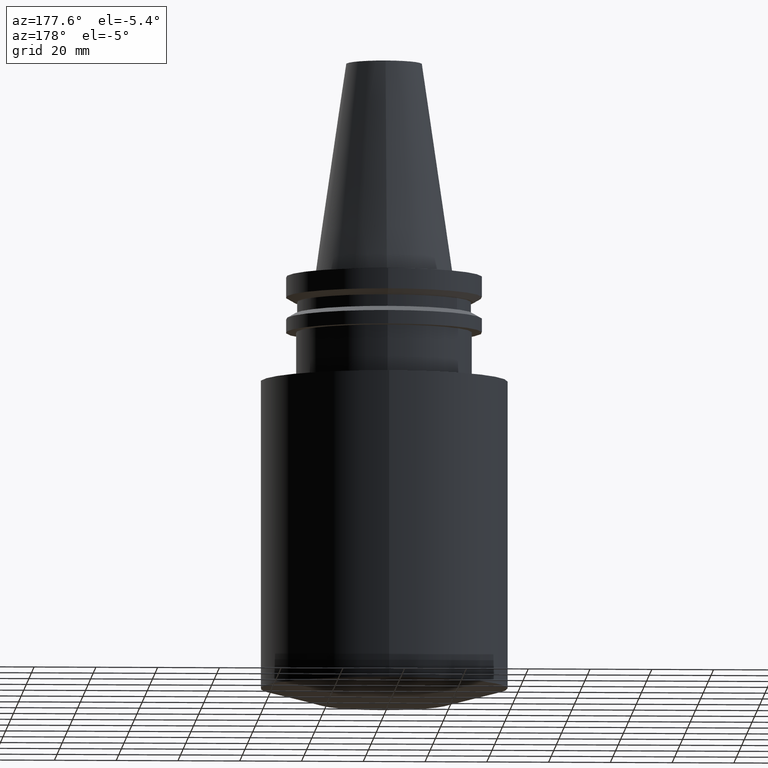
[diagram: clean part render]
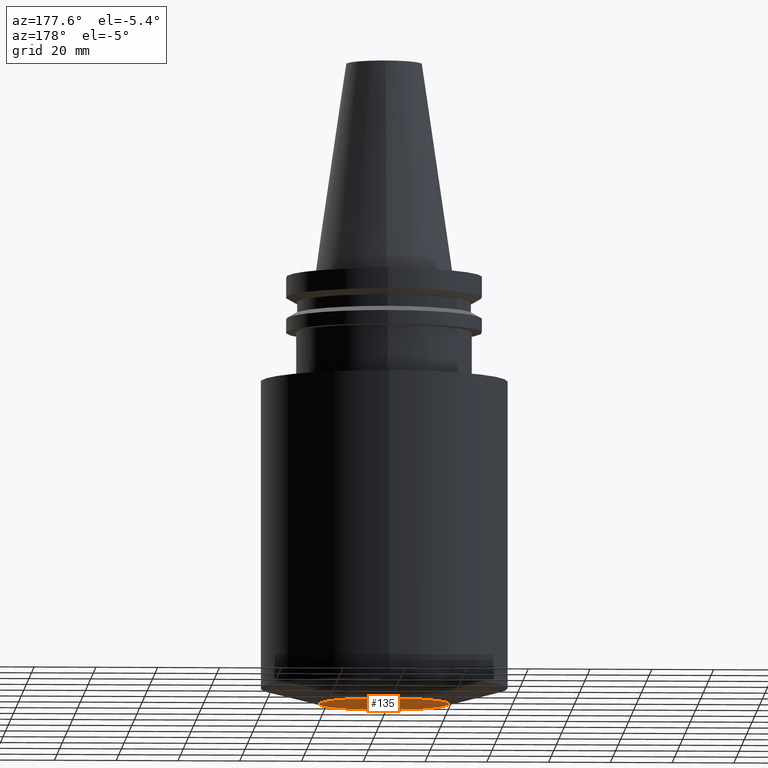
[diagram: same view with one face highlighted and labeled with its STEP entity id]
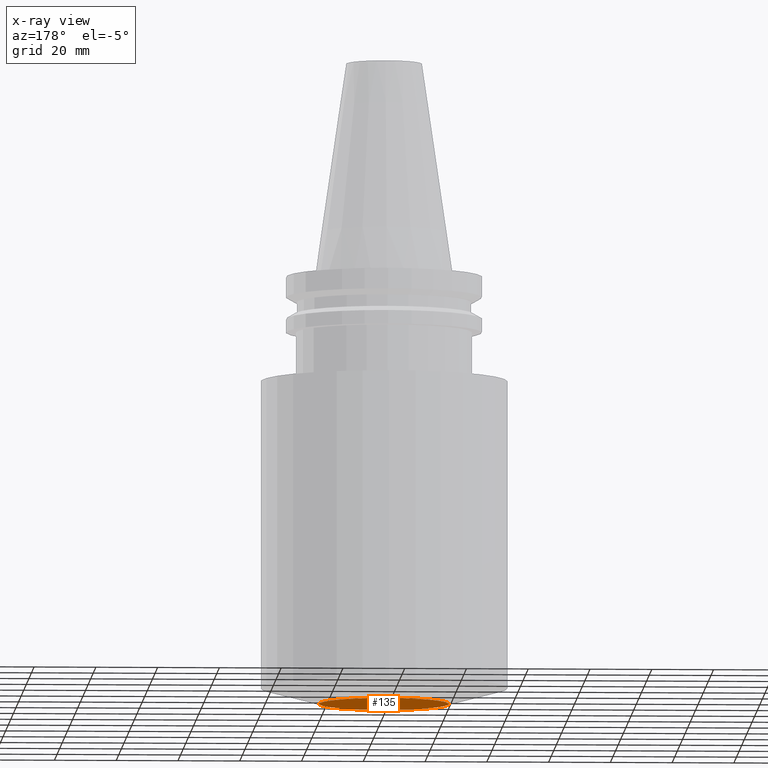
[diagram: x-ray of the same camera — body ghosted, the highlighted face saturated]
A machine part, auxiliary view. The second image highlights one B-rep face of the part: STEP entity #135.
The next image is the same camera in x-ray: the body ghosted, the highlighted face saturated — about 0% of this face is hidden behind the body in this view.
In plain terms, the highlighted planar face has unit normal (0, -0, -1).
Its self-contained STEP definition (entity closure, byte-faithful):
#126=EDGE_CURVE('Unnamed[1]',#266,#266,#267,.T.);
#135=ADVANCED_FACE('Unnamed[1]',(#280),#281,.T.);
#266=VERTEX_POINT('',#433);
#267=CIRCLE('',#434,21.0000000000052);
#280=FACE_OUTER_BOUND('',#450,.T.);
#281=PLANE('',#451);
#433=CARTESIAN_POINT('',(8.55415789204418E-015,21.0000000000052,-139.699999999999));
#434=AXIS2_PLACEMENT_3D('',#584,#585,#586);
#450=EDGE_LOOP('',(#600));
#451=AXIS2_PLACEMENT_3D('',#601,#602,#603);
#584=CARTESIAN_POINT('',(8.55415789204418E-015,1.71083157840884E-014,-139.699999999999));
#585=DIRECTION('',(6.12323399573677E-017,1.22464679914735E-016,-1.0));
#586=DIRECTION('',(-1.23259516440783E-032,1.0,1.22464679914735E-016));
#600=ORIENTED_EDGE('',*,*,#126,.T.);
#601=CARTESIAN_POINT('',(8.55415789204418E-015,10.5000000000026,-139.699999999999));
#602=DIRECTION('',(6.12323399573677E-017,-2.58436478964688E-015,-1.0));
#603=DIRECTION('',(1.5341955064274E-031,1.0,-2.58436478964688E-015));